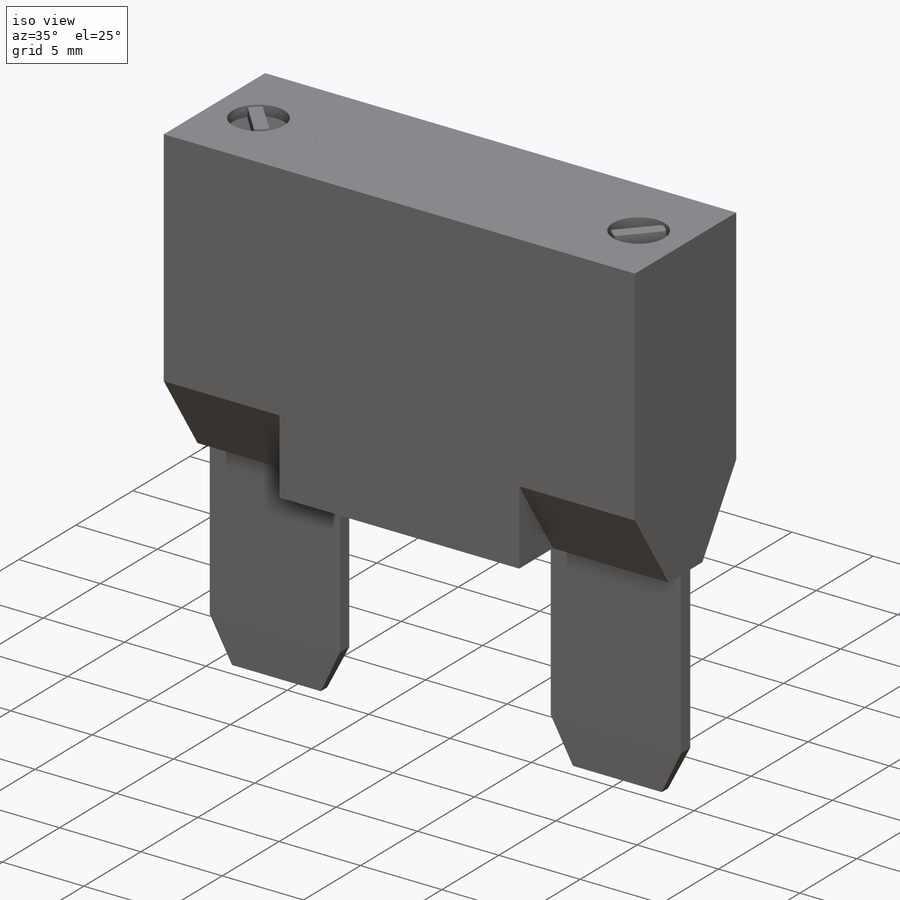
[diagram: iso view]
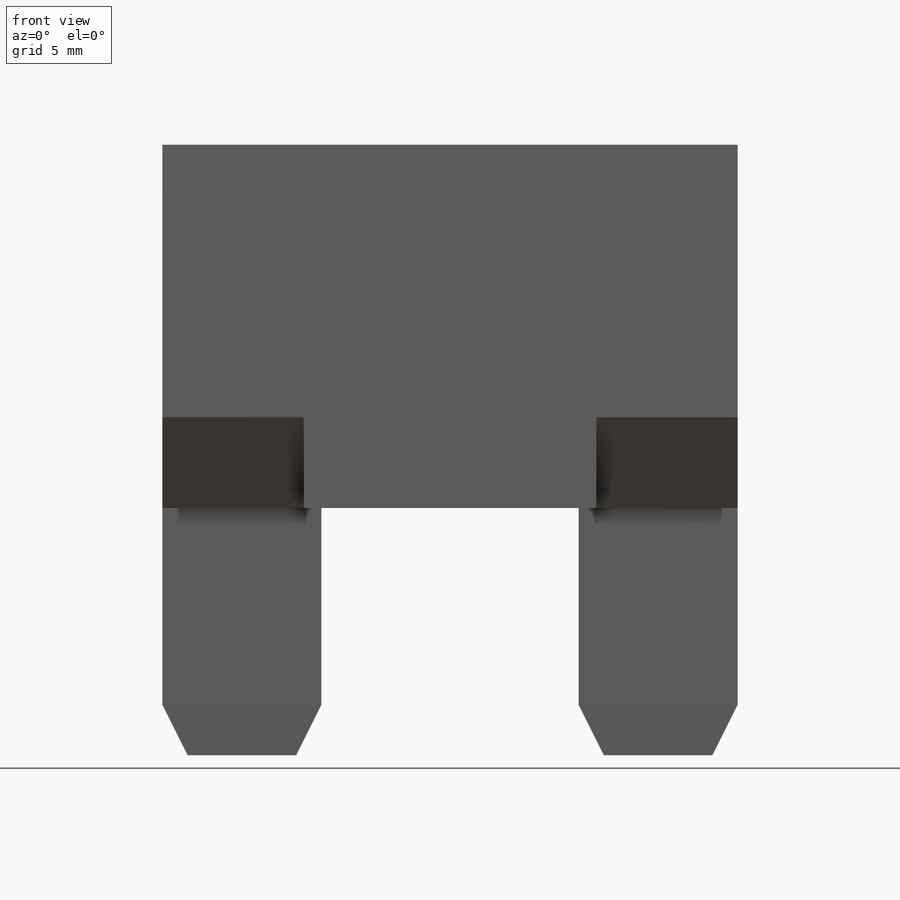
[diagram: front view]
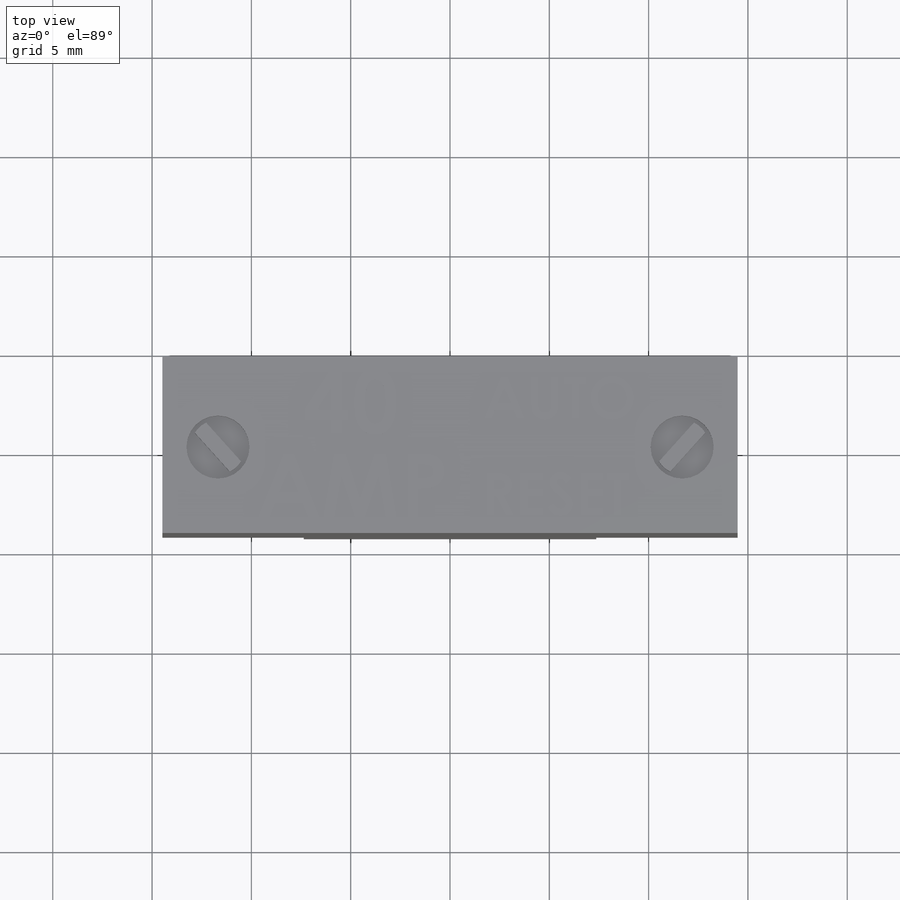
[diagram: top view]
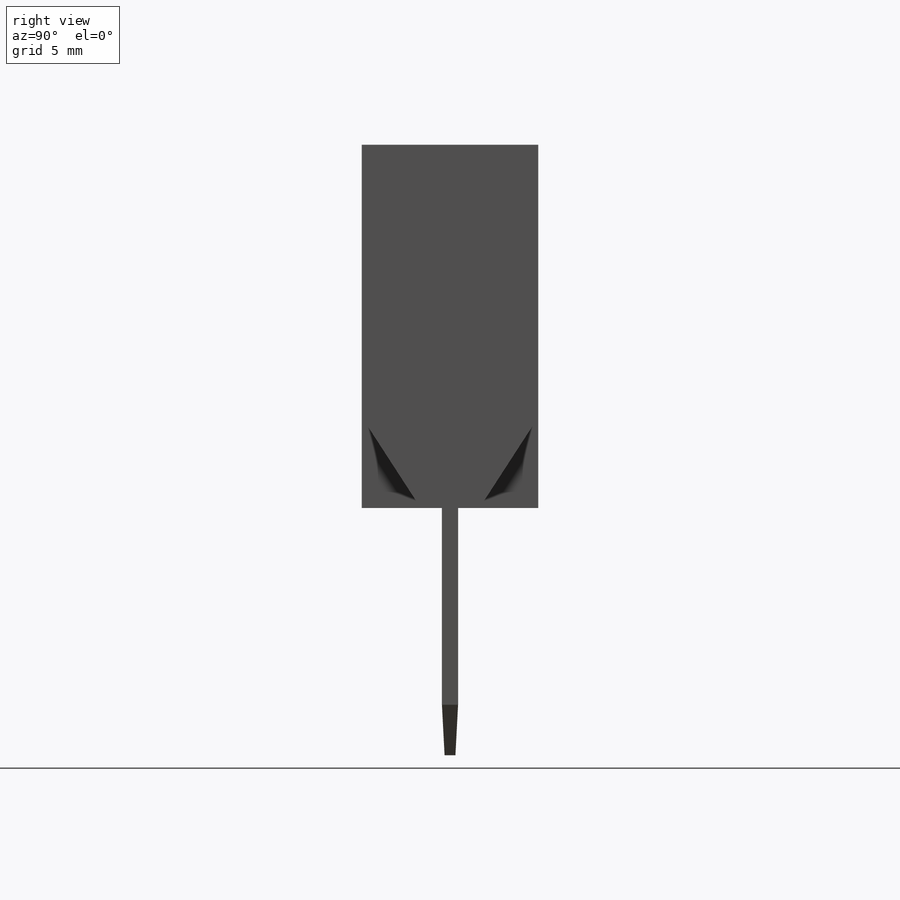
[diagram: right view]
SOLIDWORKS PART (.sldprt)
format: sldprt  version: not decoded by parser v0  size: 450,048 bytes
history: native  units: mm
features: sketch x6, extrude x5, chamfer x2, material x1, cut_extrude x1, mirror x1 (+12 scaffold rows collapsed)
feature tree (28):
  scaffold x12  (default folders/planes/origin — collapsed)
  material  "Free-Cutting Brass, UNS C36000"
  sketch  "Sketch1"  dims[c1.D1=~1.481667mm c1.D2=4.445mm c1.D3=~1.481667mm c1.D4=4.445mm c2.D1=~1.481667mm c2.D2=4.445mm c2.D3=~1.481667mm c2.D4=0.381mm c2.D5=14.097mm c2.D6=4.191mm c3.D1=8.89mm c3.D2=18.288mm c3.D3=13.716mm c4.D3=32.95deg c4.D4=4.572mm]
  extrude  "Extrude1"  Depth=28.956mm
  sketch  "Sketch2"
  extrude  "Extrude2"  Depth=14.732mm
  sketch  "Sketch3"  dims[D1=8.001mm D2=0.8128mm]
  extrude  "Extrude3"  Depth=12.446mm
  chamfer  "Chamfer1"  Distance=2.54mm Angle=3deg
  chamfer  "Chamfer2"  Distance=2.54mm Angle=26.57deg
  sketch  "Sketch4"  dims[c1.D1=3.175mm c1.D2=~4.329701mm c1.D3=2.8956mm c2.D2=4.318mm c2.D3=2.794mm]
  cut_extrude  "Extrude4"  Depth=0.635mm
  sketch  "Sketch5"  dims[c1.D1=~1.369898mm c1.D2=~0.586677mm c1.D3=~1.145009mm c1.D4=~0.029746mm c1.D5=~0.608598mm c1.D6=~1.182478mm c1.D7=~0.027561mm c1.D8=~0.767715mm c1.D9=~1.269153mm c1.D10=~0.677118mm c1.D11=~1.195813mm c2.D7=~0.027561mm c2.D2=0.762mm c2.D3=1.5875mm c3.D3=48.0deg]
  extrude  "Extrude5"  [1 undecoded]
  mirror  "Mirror1"
  sketch  "Sketch7"  dims[D1=~4.752787mm D2=~5.848096mm D3=~16.056301mm D4=~16.13965mm D5=~3.148271mm D6=~3.867881mm D7=~7.985988mm D8=~8.061561mm]
  extrude  "Extrude6"  Depth=0.00254mm
decode coverage: 12 of 15 modeling features carry decoded parameters
note: ~ marks probable driven/reference dimensions
note: 1 parameter value undecoded
note: suppression state not decoded; provenance and decode notes live in map.json
